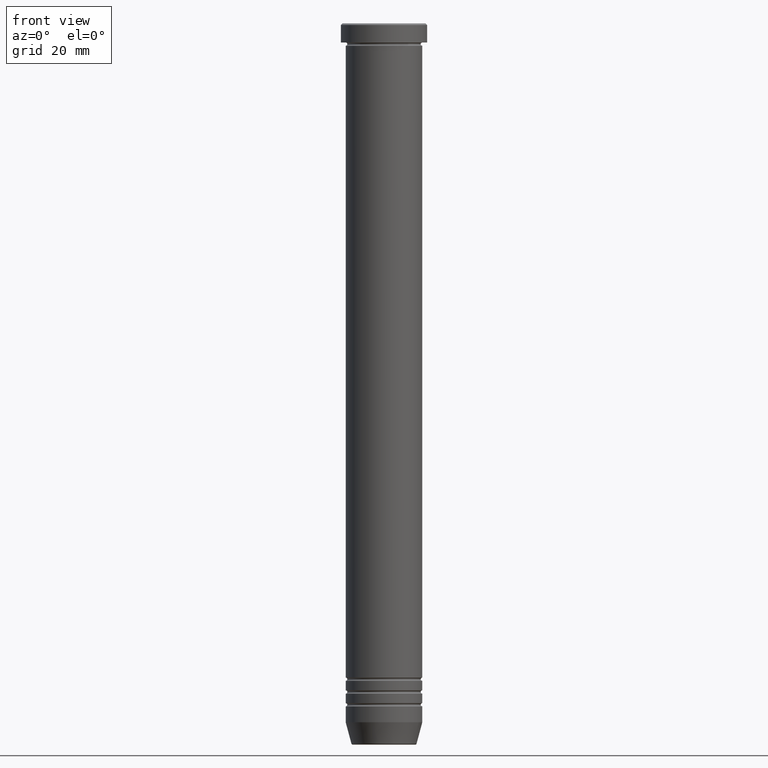
[diagram: clean part render]
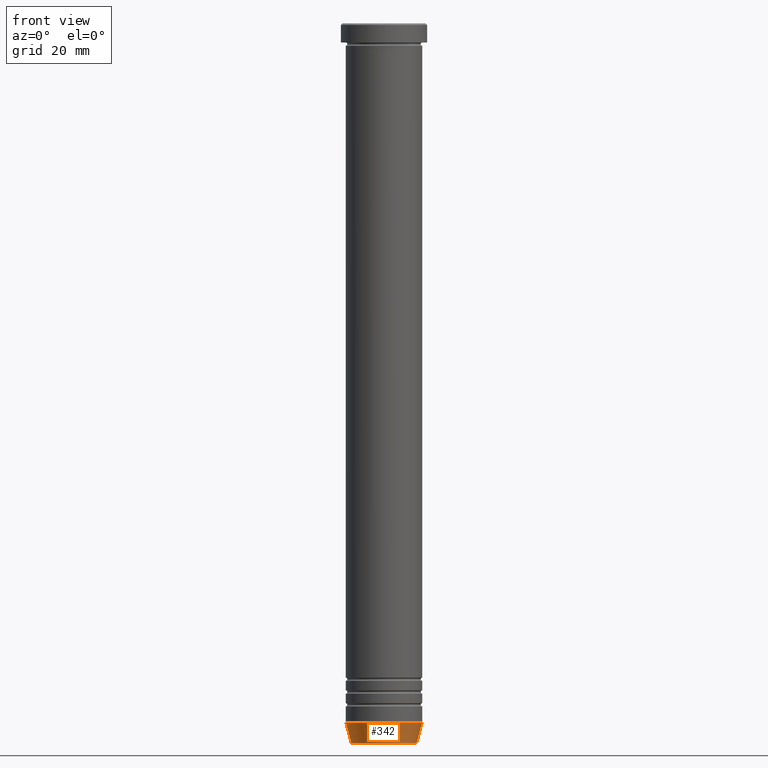
[diagram: same view with one face highlighted and labeled with its STEP entity id]
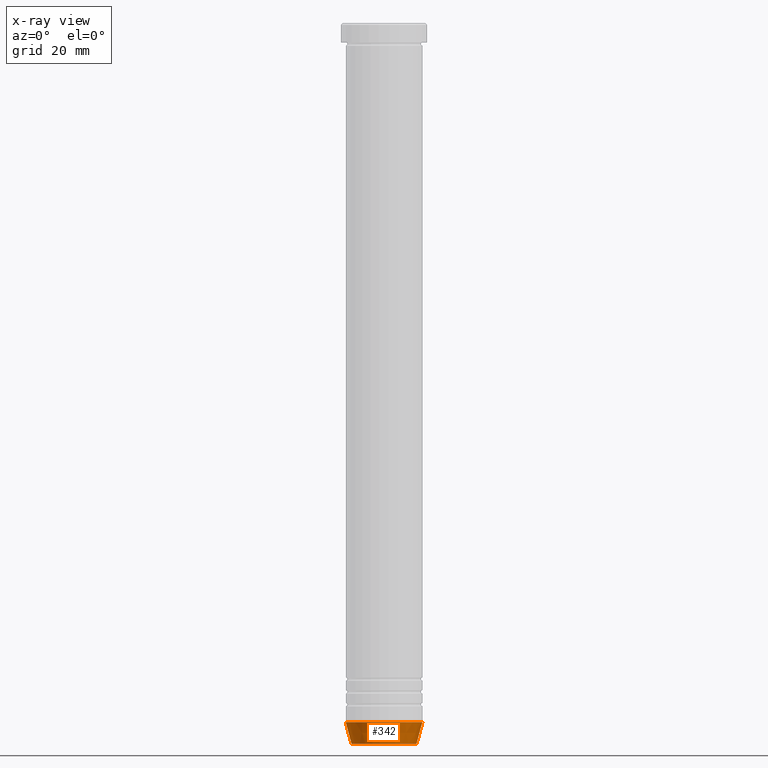
[diagram: x-ray of the same camera — body ghosted, the highlighted face saturated]
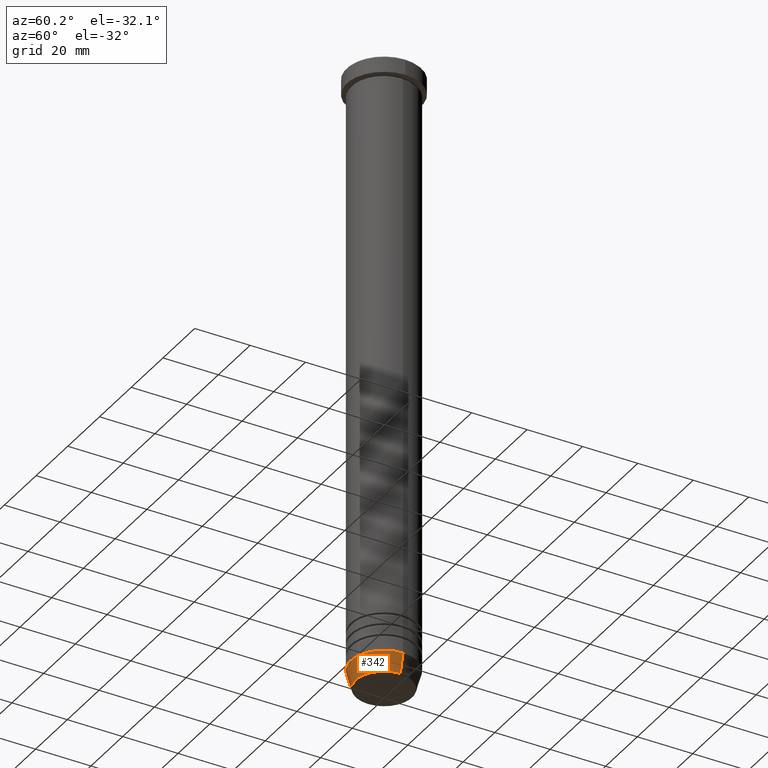
[diagram: same view with one face highlighted and labeled with its STEP entity id]
A machine part, front view. The second image highlights one B-rep face of the part: STEP entity #342.
The next image is the same camera in x-ray: the body ghosted, the highlighted face saturated — about 0% of this face is hidden behind the body in this view.
A second angle (auxiliary view) of the same face is appended — the face is thin or edge-on in the first view.
In plain terms, the highlighted conical surface has half-angle 15 deg.
Its self-contained STEP definition (entity closure, byte-faithful):
#43 = CARTESIAN_POINT ( 'NONE',  ( -12.00000000000000178, 1.469576158976824144E-15, -218.9999999999999716 ) ) ;
#63 = ORIENTED_EDGE ( 'NONE', *, *, #960, .F. ) ;
#76 = DIRECTION ( 'NONE',  ( 1.000000000000000000, 0.000000000000000000, 0.000000000000000000 ) ) ;
#88 = VERTEX_POINT ( 'NONE', #135 ) ;
#135 = CARTESIAN_POINT ( 'NONE',  ( 10.22365507213718416, 0.000000000000000000, -225.6294095225512137 ) ) ;
#213 = EDGE_CURVE ( 'NONE', #88, #981, #796, .T. ) ;
#243 = DIRECTION ( 'NONE',  ( -0.2588190451025214611, 3.169619151431774186E-17, 0.9659258262890679791 ) ) ;
#316 = LINE ( 'NONE', #958, #484 ) ;
#328 = DIRECTION ( 'NONE',  ( -0.000000000000000000, -0.000000000000000000, 1.000000000000000000 ) ) ;
#342 = ADVANCED_FACE ( 'NONE', ( #435 ), #496, .T. ) ;
#347 = CIRCLE ( 'NONE', #497, 12.00000000000000178 ) ;
#358 = DIRECTION ( 'NONE',  ( 0.2588190451025214611, 0.000000000000000000, 0.9659258262890679791 ) ) ;
#406 = AXIS2_PLACEMENT_3D ( 'NONE', #498, #328, #434 ) ;
#420 = ORIENTED_EDGE ( 'NONE', *, *, #479, .F. ) ;
#425 = VECTOR ( 'NONE', #358, 1000.000000000000114 ) ;
#434 = DIRECTION ( 'NONE',  ( -1.000000000000000000, 0.000000000000000000, 0.000000000000000000 ) ) ;
#435 = FACE_OUTER_BOUND ( 'NONE', #895, .T. ) ;
#436 = VERTEX_POINT ( 'NONE', #43 ) ;
#479 = EDGE_CURVE ( 'NONE', #718, #436, #316, .T. ) ;
#484 = VECTOR ( 'NONE', #243, 1000.000000000000114 ) ;
#496 = CONICAL_SURFACE ( 'NONE', #642, 10.12435565298213547, 0.2617993877991502405 ) ;
#497 = AXIS2_PLACEMENT_3D ( 'NONE', #1149, #1127, #76 ) ;
#498 = CARTESIAN_POINT ( 'NONE',  ( 0.000000000000000000, 0.000000000000000000, -225.6294095225512137 ) ) ;
#523 = ORIENTED_EDGE ( 'NONE', *, *, #213, .T. ) ;
#642 = AXIS2_PLACEMENT_3D ( 'NONE', #811, #1015, #1008 ) ;
#687 = CARTESIAN_POINT ( 'NONE',  ( 12.00000000000000178, 0.000000000000000000, -218.9999999999999716 ) ) ;
#718 = VERTEX_POINT ( 'NONE', #801 ) ;
#764 = ORIENTED_EDGE ( 'NONE', *, *, #882, .T. ) ;
#796 = LINE ( 'NONE', #1077, #425 ) ;
#801 = CARTESIAN_POINT ( 'NONE',  ( -10.22365507213718416, 1.360806402472382547E-15, -225.6294095225512137 ) ) ;
#811 = CARTESIAN_POINT ( 'NONE',  ( 0.000000000000000000, 0.000000000000000000, -225.9999999999999716 ) ) ;
#882 = EDGE_CURVE ( 'NONE', #718, #88, #975, .T. ) ;
#895 = EDGE_LOOP ( 'NONE', ( #420, #764, #523, #63 ) ) ;
#958 = CARTESIAN_POINT ( 'NONE',  ( -10.12435565298213547, 1.239875974385398349E-15, -225.9999999999999716 ) ) ;
#960 = EDGE_CURVE ( 'NONE', #436, #981, #347, .T. ) ;
#975 = CIRCLE ( 'NONE', #406, 10.22365507213718416 ) ;
#981 = VERTEX_POINT ( 'NONE', #687 ) ;
#1008 = DIRECTION ( 'NONE',  ( 1.000000000000000000, 0.000000000000000000, 0.000000000000000000 ) ) ;
#1015 = DIRECTION ( 'NONE',  ( -0.000000000000000000, -0.000000000000000000, 1.000000000000000000 ) ) ;
#1077 = CARTESIAN_POINT ( 'NONE',  ( 10.12435565298213547, 0.000000000000000000, -225.9999999999999716 ) ) ;
#1127 = DIRECTION ( 'NONE',  ( -0.000000000000000000, -0.000000000000000000, 1.000000000000000000 ) ) ;
#1149 = CARTESIAN_POINT ( 'NONE',  ( 0.000000000000000000, 0.000000000000000000, -218.9999999999999716 ) ) ;